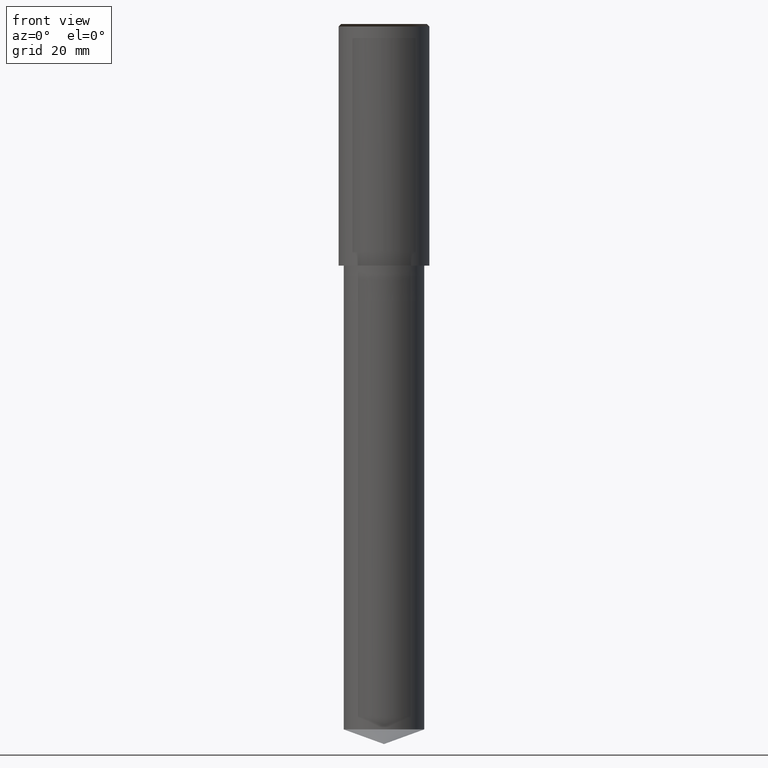
[diagram: clean part render]
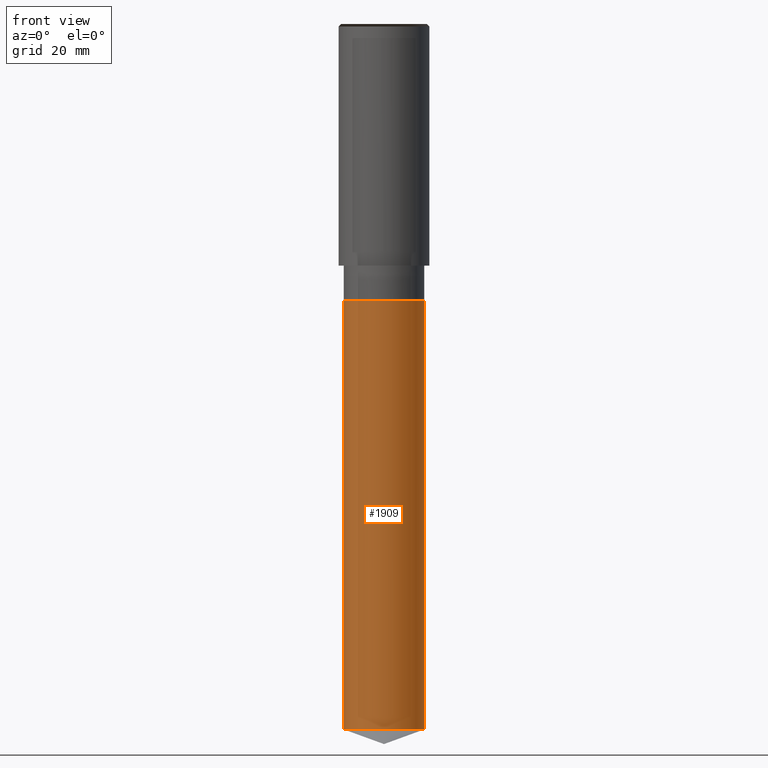
[diagram: same view with one face highlighted and labeled with its STEP entity id]
A machine part, front view. The second image highlights one B-rep face of the part: STEP entity #1909.
In plain terms, the highlighted face is a freeform B-spline surface patch.
Its self-contained STEP definition (entity closure, byte-faithful):
#1759=CARTESIAN_POINT('',(8.0,0.0,-92.08823812587));
#1763=CARTESIAN_POINT('',(-8.0,0.0,-92.08823812587));
#1764=CARTESIAN_POINT('',(8.0,0.0,-7.0));
#1768=CARTESIAN_POINT('',(-8.0,0.0,-7.0));
#1770=CARTESIAN_POINT('',(-8.0,-8.0,-92.08823812587));
#1771=CARTESIAN_POINT('',(0.0,-8.0,-92.08823812587));
#1772=CARTESIAN_POINT('',(8.0,-8.0,-92.08823812587));
#1773=CARTESIAN_POINT('',(-8.0,-8.0,-7.0));
#1774=CARTESIAN_POINT('',(0.0,-8.0,-7.0));
#1775=CARTESIAN_POINT('',(8.0,-8.0,-7.0));
#1890=(
BOUNDED_SURFACE()
B_SPLINE_SURFACE(1,2,(
(#1763,#1770,#1771,#1772,#1759),
(#1768,#1773,#1774,#1775,#1764)
), .UNSPECIFIED.,.F.,.F.,.F.)
B_SPLINE_SURFACE_WITH_KNOTS((2,2),(3,2,3),(
0.0,1.0),(
0.0,0.5,1.0), .UNSPECIFIED.)
GEOMETRIC_REPRESENTATION_ITEM()
RATIONAL_B_SPLINE_SURFACE(((1.0,0.707106781187,1.0,0.707106781187,1.0),
(1.0,0.707106781187,1.0,0.707106781187,1.0)
))
REPRESENTATION_ITEM('')
SURFACE()
);
#1891=(
BOUNDED_CURVE()
B_SPLINE_CURVE(2,(#1759,#1772,#1771,#1770,#1763),.UNSPECIFIED.,.F.,.F.)
B_SPLINE_CURVE_WITH_KNOTS((3,2,3),
(0.0,0.5,1.0),.UNSPECIFIED.)
CURVE()
GEOMETRIC_REPRESENTATION_ITEM()
RATIONAL_B_SPLINE_CURVE((1.0,0.707106781187,1.0,0.707106781187,1.0))
REPRESENTATION_ITEM('')
);
#1892=(
BOUNDED_CURVE()
B_SPLINE_CURVE(1,(#1763,#1768),.UNSPECIFIED.,.F.,.F.)
B_SPLINE_CURVE_WITH_KNOTS((2,2),
(0.0,1.0),.UNSPECIFIED.)
CURVE()
GEOMETRIC_REPRESENTATION_ITEM()
RATIONAL_B_SPLINE_CURVE((1.0,1.0))
REPRESENTATION_ITEM('')
);
#1893=(
BOUNDED_CURVE()
B_SPLINE_CURVE(2,(#1768,#1773,#1774,#1775,#1764),.UNSPECIFIED.,.F.,.F.)
B_SPLINE_CURVE_WITH_KNOTS((3,2,3),
(0.0,0.5,1.0),.UNSPECIFIED.)
CURVE()
GEOMETRIC_REPRESENTATION_ITEM()
RATIONAL_B_SPLINE_CURVE((1.0,0.707106781187,1.0,0.707106781187,1.0))
REPRESENTATION_ITEM('')
);
#1894=(
BOUNDED_CURVE()
B_SPLINE_CURVE(1,(#1764,#1759),.UNSPECIFIED.,.F.,.F.)
B_SPLINE_CURVE_WITH_KNOTS((2,2),
(0.0,1.0),.UNSPECIFIED.)
CURVE()
GEOMETRIC_REPRESENTATION_ITEM()
RATIONAL_B_SPLINE_CURVE((1.0,1.0))
REPRESENTATION_ITEM('')
);
#1895=VERTEX_POINT('',#1759);
#1896=VERTEX_POINT('',#1763);
#1897=VERTEX_POINT('',#1764);
#1898=VERTEX_POINT('',#1768);
#1899=EDGE_CURVE('',#1895,#1896,#1891,.T.);
#1900=EDGE_CURVE('',#1896,#1898,#1892,.T.);
#1901=EDGE_CURVE('',#1898,#1897,#1893,.T.);
#1902=EDGE_CURVE('',#1897,#1895,#1894,.T.);
#1903=ORIENTED_EDGE('',*,*,#1899,.T.);
#1904=ORIENTED_EDGE('',*,*,#1900,.T.);
#1905=ORIENTED_EDGE('',*,*,#1901,.T.);
#1906=ORIENTED_EDGE('',*,*,#1902,.T.);
#1907=EDGE_LOOP('',(#1903,#1904,#1905,#1906));
#1908=FACE_OUTER_BOUND('',#1907,.T.);
#1909=ADVANCED_FACE('',(#1908),#1890,.T.);